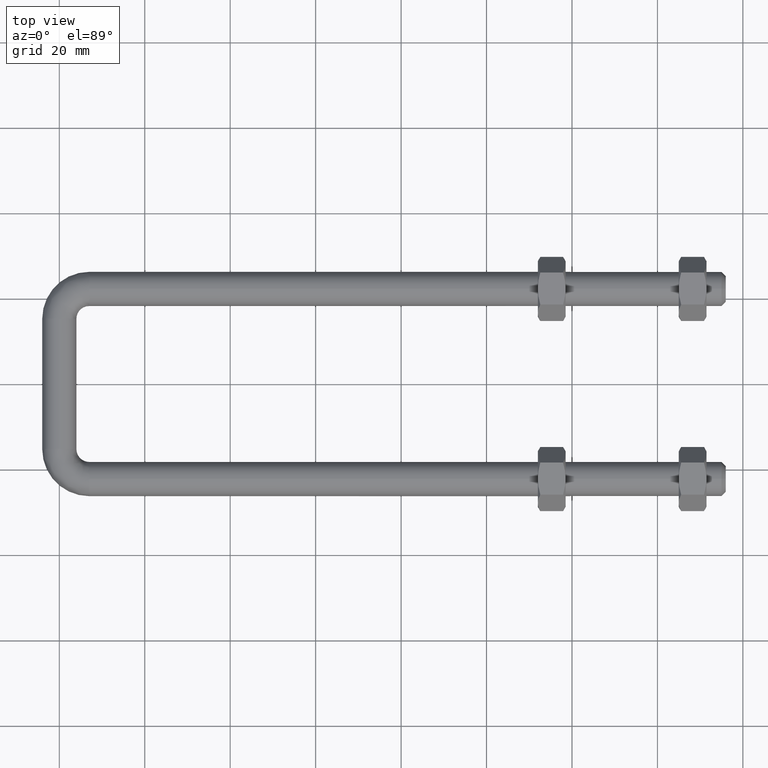
[diagram: clean part render]
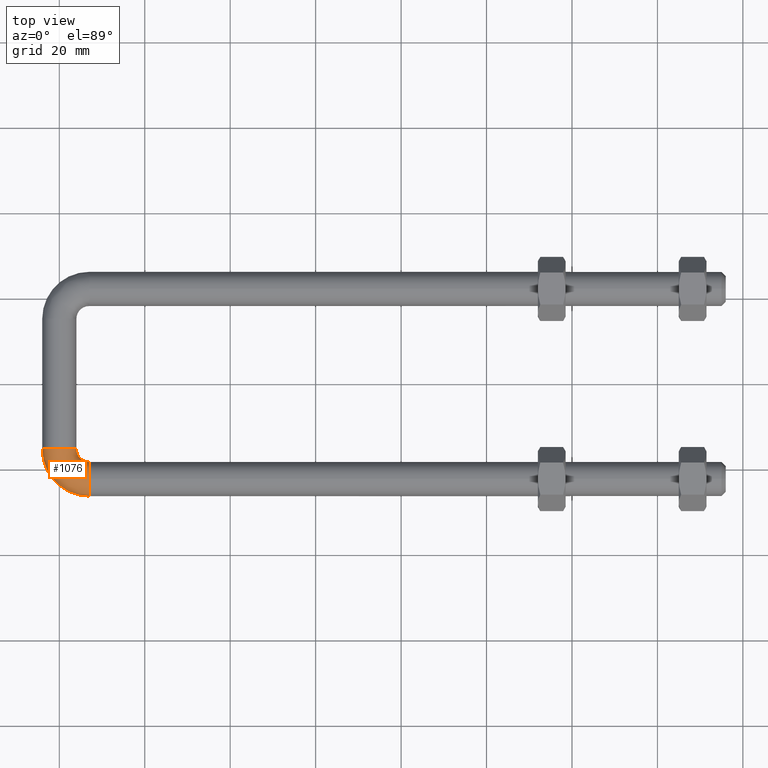
[diagram: same view with one face highlighted and labeled with its STEP entity id]
A machine part, top view. The second image highlights one B-rep face of the part: STEP entity #1076.
In plain terms, the highlighted face is a freeform B-spline surface patch.
Its self-contained STEP definition (entity closure, byte-faithful):
#20 = DIRECTION ( 'NONE',  ( -2.623212212082829300E-017, -2.623212212082826200E-017, 1.000000000000000000 ) ) ;
#34 = CARTESIAN_POINT ( 'NONE',  ( 3.980016660999999600, -15.25000000000000000, -0.3993336670000001100 ) ) ;
#39 = CARTESIAN_POINT ( 'NONE',  ( 4.232929618000000000, -15.25000000000000000, 2.121359842000000400 ) ) ;
#40 = CARTESIAN_POINT ( 'NONE',  ( 7.000000000000000000, -22.25000000000000000, 0.0000000000000000000 ) ) ;
#44 = CARTESIAN_POINT ( 'NONE',  ( 7.000000000000000000, -22.25000000000000000, 4.000000000000000000 ) ) ;
#55 = CARTESIAN_POINT ( 'NONE',  ( -3.980016661000000100, -21.68194484499999700, -0.3993336670000000600 ) ) ;
#86 = VERTEX_POINT ( 'NONE', #425 ) ;
#98 = CARTESIAN_POINT ( 'NONE',  ( 7.000000000000000000, -18.25000000002329900, 2.578235940851850100E-009 ) ) ;
#106 = VERTEX_POINT ( 'NONE', #1505 ) ;
#114 = EDGE_CURVE ( 'NONE', #106, #197, #820, .T. ) ;
#156 = CARTESIAN_POINT ( 'NONE',  ( 5.379087698000000200, -18.01707038200000000, 2.121359842000000400 ) ) ;
#174 = EDGE_CURVE ( 'NONE', #86, #1068, #1193, .T. ) ;
#187 = CARTESIAN_POINT ( 'NONE',  ( -3.999999999988348000, -15.25000000000000000, -1.466061986299362000E-010 ) ) ;
#191 = CARTESIAN_POINT ( 'NONE',  ( 0.0000000000000000000, -15.25000000000000000, 0.0000000000000000000 ) ) ;
#197 = VERTEX_POINT ( 'NONE', #1094 ) ;
#217 = DIRECTION ( 'NONE',  ( 1.000000000000000000, 0.0000000000000000000, 2.623212210795835100E-017 ) ) ;
#230 = EDGE_CURVE ( 'NONE', #768, #86, #540, .T. ) ;
#239 = DIRECTION ( 'NONE',  ( 0.0000000000000000000, 1.000000000000000000, 8.093990674186304000E-017 ) ) ;
#265 = DIRECTION ( 'NONE',  ( 0.0000000000000000000, -1.000000000000000000, 0.0000000000000000000 ) ) ;
#279 = EDGE_LOOP ( 'NONE', ( #486, #738, #291, #1002, #1413, #948 ) ) ;
#284 = CARTESIAN_POINT ( 'NONE',  ( 2.533349704999999600, -15.25000000000000000, 4.000000000000000000 ) ) ;
#291 = ORIENTED_EDGE ( 'NONE', *, *, #230, .T. ) ;
#361 = CIRCLE ( 'NONE', #1207, 4.000000000000000000 ) ;
#370 = EDGE_CURVE ( 'NONE', #197, #768, #361, .T. ) ;
#389 = CARTESIAN_POINT ( 'NONE',  ( 3.980016661000000100, -17.01906528200000300, -0.3993336670000000600 ) ) ;
#392 = CARTESIAN_POINT ( 'NONE',  ( 4.383496835000000800, -19.71665029500000100, 4.000000000000000000 ) ) ;
#402 = CARTESIAN_POINT ( 'NONE',  ( 1.415493037999999700, -24.78334970499999900, 4.000000000000000000 ) ) ;
#425 = CARTESIAN_POINT ( 'NONE',  ( 3.999999999988348900, -15.24999999999999800, 9.044274687501476200E-010 ) ) ;
#428 = EDGE_CURVE ( 'NONE', #1068, #926, #968, .T. ) ;
#465 = CIRCLE ( 'NONE', #901, 10.99999999995339700 ) ;
#486 = ORIENTED_EDGE ( 'NONE', *, *, #114, .T. ) ;
#505 = DIRECTION ( 'NONE',  ( 1.000000000000000000, 0.0000000000000000000, 0.0000000000000000000 ) ) ;
#511 = CARTESIAN_POINT ( 'NONE',  ( -4.232929618000000000, -15.25000000000000000, 2.121359842000000400 ) ) ;
#540 = CIRCLE ( 'NONE', #873, 3.000000000046599200 ) ;
#548 = AXIS2_PLACEMENT_3D ( 'NONE', #40, #936, #1157 ) ;
#590 = FACE_OUTER_BOUND ( 'NONE', #279, .T. ) ;
#618 = CARTESIAN_POINT ( 'NONE',  ( 4.898587196589412800E-016, -15.25000000000000000, 4.000000000000000000 ) ) ;
#624 = CARTESIAN_POINT ( 'NONE',  ( 0.0000000000000000000, -19.35050506300000400, 3.999999999999999600 ) ) ;
#630 = CARTESIAN_POINT ( 'NONE',  ( 0.4199021750000001000, -26.48292961799999600, 2.121359842000000400 ) ) ;
#642 = CARTESIAN_POINT ( 'NONE',  ( 0.0000000000000000000, -15.25000000000000000, 0.0000000000000000000 ) ) ;
#704 = AXIS2_PLACEMENT_3D ( 'NONE', #642, #1197, #505 ) ;
#734 = CARTESIAN_POINT ( 'NONE',  ( 7.000000000000000000, -18.26998333899999900, -0.3993336670000001100 ) ) ;
#738 = ORIENTED_EDGE ( 'NONE', *, *, #370, .T. ) ;
#750 = CARTESIAN_POINT ( 'NONE',  ( 7.000000000000006200, -15.25000000000000000, 4.336057778401546700E-009 ) ) ;
#751 =( BOUNDED_SURFACE ( )  B_SPLINE_SURFACE ( 3, 3, ( 
 ( #34, #389, #1480, #734 ),
 ( #39, #868, #156, #994 ),
 ( #284, #1122, #392, #1238 ),
 ( #1355, #624, #1481, #44 ),
 ( #1000, #1125, #402, #1244 ),
 ( #511, #1362, #630, #1487 ),
 ( #1501, #55, #1008, #982 ) ),
 .UNSPECIFIED., .F., .F., .F. ) 
 B_SPLINE_SURFACE_WITH_KNOTS ( ( 4, 3, 4 ),
 ( 4, 4 ),
 ( 0.0000000000000000000, 0.5000000000000000000, 1.000000000000000000 ),
 ( 0.0000000000000000000, 1.000000000000000000 ),
 .UNSPECIFIED. ) 
 GEOMETRIC_REPRESENTATION_ITEM ( )  RATIONAL_B_SPLINE_SURFACE ( (
 ( 1.000000000000000000, 0.8047378541243650500, 0.8047378541243650500, 1.000000000000000000),
 ( 0.7805883148851628900, 0.6281689654752399300, 0.6281689654752399300, 0.7805883148851628900),
 ( 0.7805883148851628900, 0.6281689654752399300, 0.6281689654752399300, 0.7805883148851628900),
 ( 1.000000000000000000, 0.8047378541243650500, 0.8047378541243650500, 1.000000000000000000),
 ( 0.7805883148851628900, 0.6281689654752399300, 0.6281689654752399300, 0.7805883148851628900),
 ( 0.7805883148851628900, 0.6281689654752399300, 0.6281689654752399300, 0.7805883148851628900),
 ( 1.000000000000000000, 0.8047378541243650500, 0.8047378541243650500, 1.000000000000000000) ) ) 
 REPRESENTATION_ITEM ( '' )  SURFACE ( )  );
#766 = CARTESIAN_POINT ( 'NONE',  ( 6.999999999999994700, -15.25000000000000200, 4.336059145250174800E-009 ) ) ;
#768 = VERTEX_POINT ( 'NONE', #98 ) ;
#814 = DIRECTION ( 'NONE',  ( 1.000000000000000000, 0.0000000000000000000, 0.0000000000000000000 ) ) ;
#820 = CIRCLE ( 'NONE', #548, 4.000000000000000000 ) ;
#857 = EDGE_CURVE ( 'NONE', #926, #106, #465, .T. ) ;
#868 = CARTESIAN_POINT ( 'NONE',  ( 4.232929618000000000, -16.87091230200000100, 2.121359842000000400 ) ) ;
#873 = AXIS2_PLACEMENT_3D ( 'NONE', #766, #1518, #239 ) ;
#901 = AXIS2_PLACEMENT_3D ( 'NONE', #750, #20, #217 ) ;
#926 = VERTEX_POINT ( 'NONE', #187 ) ;
#936 = DIRECTION ( 'NONE',  ( -1.000000000000000000, -1.084202172485504300E-016, 0.0000000000000000000 ) ) ;
#948 = ORIENTED_EDGE ( 'NONE', *, *, #857, .T. ) ;
#954 = DIRECTION ( 'NONE',  ( 0.0000000000000000000, 1.000000000000000000, 0.0000000000000000000 ) ) ;
#968 = CIRCLE ( 'NONE', #1453, 4.000000000000000000 ) ;
#982 = CARTESIAN_POINT ( 'NONE',  ( 7.000000000000000000, -26.23001666100000100, -0.3993336670000001100 ) ) ;
#994 = CARTESIAN_POINT ( 'NONE',  ( 7.000000000000000900, -18.01707038200000700, 2.121359842000000400 ) ) ;
#1000 = CARTESIAN_POINT ( 'NONE',  ( -2.533349704999999600, -15.25000000000000000, 4.000000000000000000 ) ) ;
#1002 = ORIENTED_EDGE ( 'NONE', *, *, #174, .T. ) ;
#1008 = CARTESIAN_POINT ( 'NONE',  ( 0.5680551549999999200, -26.23001666100000100, -0.3993336670000000600 ) ) ;
#1033 = DIRECTION ( 'NONE',  ( -1.000000000000000000, -1.084202172485504300E-016, 0.0000000000000000000 ) ) ;
#1068 = VERTEX_POINT ( 'NONE', #618 ) ;
#1076 = ADVANCED_FACE ( 'NONE', ( #590 ), #751, .T. ) ;
#1094 = CARTESIAN_POINT ( 'NONE',  ( 7.000000000000000000, -22.24999999999998900, 4.000000000000000000 ) ) ;
#1122 = CARTESIAN_POINT ( 'NONE',  ( 2.533349705000000500, -17.86650316500000500, 4.000000000000000000 ) ) ;
#1125 = CARTESIAN_POINT ( 'NONE',  ( -2.533349705000000500, -20.83450696200000300, 4.000000000000000000 ) ) ;
#1157 = DIRECTION ( 'NONE',  ( 0.0000000000000000000, 1.000000000000000000, 0.0000000000000000000 ) ) ;
#1193 = CIRCLE ( 'NONE', #704, 4.000000000000000000 ) ;
#1197 = DIRECTION ( 'NONE',  ( 0.0000000000000000000, -1.000000000000000000, 0.0000000000000000000 ) ) ;
#1207 = AXIS2_PLACEMENT_3D ( 'NONE', #1323, #1033, #954 ) ;
#1238 = CARTESIAN_POINT ( 'NONE',  ( 7.000000000000000900, -19.71665029500000100, 4.000000000000000000 ) ) ;
#1244 = CARTESIAN_POINT ( 'NONE',  ( 7.000000000000000900, -24.78334970499999600, 4.000000000000000000 ) ) ;
#1323 = CARTESIAN_POINT ( 'NONE',  ( 7.000000000000000000, -22.25000000000000000, 0.0000000000000000000 ) ) ;
#1355 = CARTESIAN_POINT ( 'NONE',  ( 0.0000000000000000000, -15.25000000000000000, 4.000000000000000000 ) ) ;
#1362 = CARTESIAN_POINT ( 'NONE',  ( -4.232929618000000000, -21.83009782500000300, 2.121359842000000400 ) ) ;
#1413 = ORIENTED_EDGE ( 'NONE', *, *, #428, .T. ) ;
#1453 = AXIS2_PLACEMENT_3D ( 'NONE', #191, #265, #814 ) ;
#1480 = CARTESIAN_POINT ( 'NONE',  ( 5.230934718000000300, -18.26998333899999900, -0.3993336670000000600 ) ) ;
#1481 = CARTESIAN_POINT ( 'NONE',  ( 2.899494936999999200, -22.24999999999999300, 3.999999999999999600 ) ) ;
#1487 = CARTESIAN_POINT ( 'NONE',  ( 7.000000000000000900, -26.48292961799999300, 2.121359842000000400 ) ) ;
#1501 = CARTESIAN_POINT ( 'NONE',  ( -3.980016660999999600, -15.25000000000000000, -0.3993336670000001100 ) ) ;
#1505 = CARTESIAN_POINT ( 'NONE',  ( 7.000000000000006200, -26.24999999999998900, 2.937866047754690900E-009 ) ) ;
#1518 = DIRECTION ( 'NONE',  ( 8.093990682823587600E-017, 8.093990682823590100E-017, -1.000000000000000000 ) ) ;